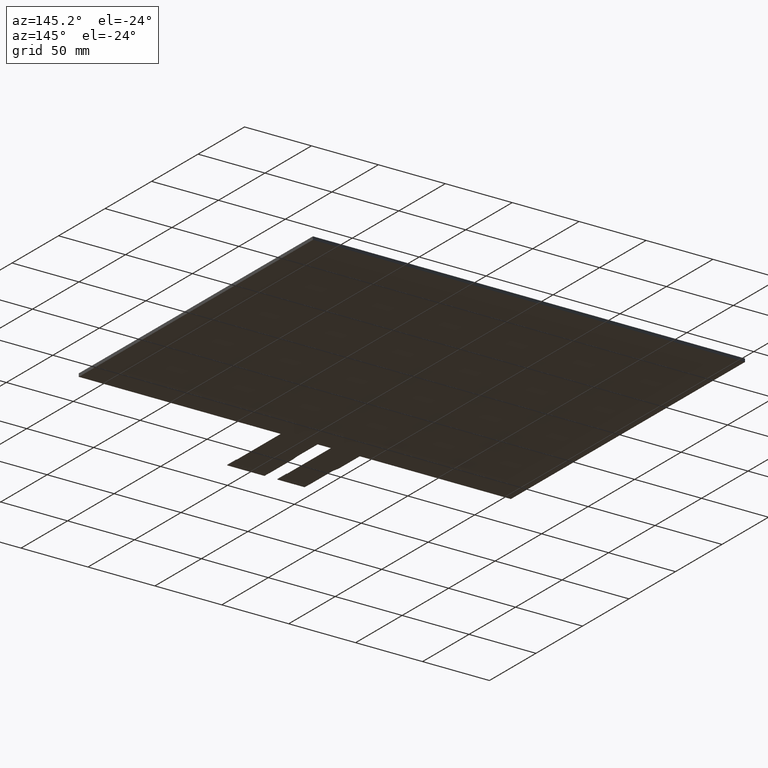
[diagram: clean part render]
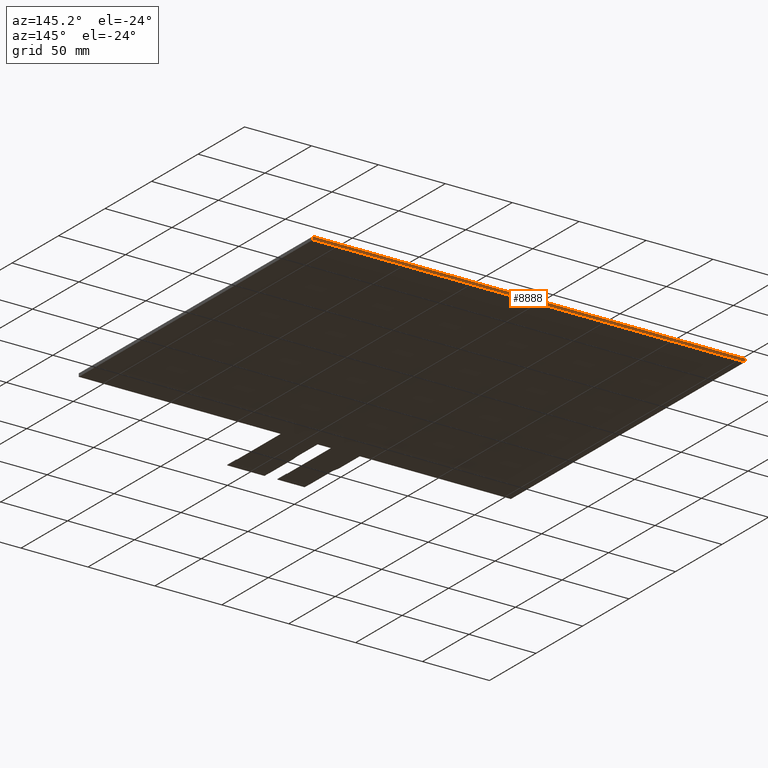
[diagram: same view with one face highlighted and labeled with its STEP entity id]
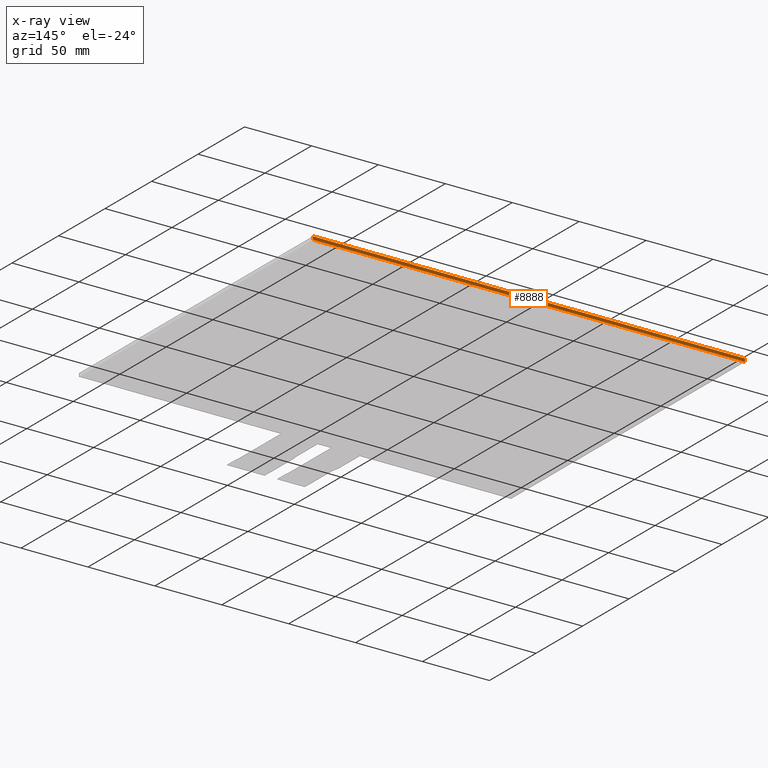
[diagram: x-ray of the same camera — body ghosted, the highlighted face saturated]
A machine part, auxiliary view. The second image highlights one B-rep face of the part: STEP entity #8888.
The next image is the same camera in x-ray: the body ghosted, the highlighted face saturated — about 0% of this face is hidden behind the body in this view.
In plain terms, the highlighted planar face has unit normal (0, 1, 0).
Its self-contained STEP definition (entity closure, byte-faithful):
#550=PLANE('',#9338);
#972=FACE_OUTER_BOUND('',#1398,.T.);
#1398=EDGE_LOOP('',(#8453,#8454,#8455,#8456));
#2629=LINE('',#13922,#3869);
#2633=LINE('',#13930,#3873);
#2639=LINE('',#13941,#3879);
#2640=LINE('',#13943,#3880);
#3869=VECTOR('',#11419,10.);
#3873=VECTOR('',#11425,10.);
#3879=VECTOR('',#11435,10.);
#3880=VECTOR('',#11438,10.);
#4713=VERTEX_POINT('',#13920);
#4714=VERTEX_POINT('',#13921);
#4717=VERTEX_POINT('',#13929);
#4720=VERTEX_POINT('',#13939);
#5957=EDGE_CURVE('',#4713,#4714,#2629,.T.);
#5961=EDGE_CURVE('',#4714,#4717,#2633,.T.);
#5967=EDGE_CURVE('',#4713,#4720,#2639,.T.);
#5968=EDGE_CURVE('',#4717,#4720,#2640,.T.);
#8453=ORIENTED_EDGE('',*,*,#5957,.F.);
#8454=ORIENTED_EDGE('',*,*,#5967,.T.);
#8455=ORIENTED_EDGE('',*,*,#5968,.F.);
#8456=ORIENTED_EDGE('',*,*,#5961,.F.);
#8888=ADVANCED_FACE('',(#972),#550,.T.);
#9338=AXIS2_PLACEMENT_3D('',#13942,#11436,#11437);
#11419=DIRECTION('',(-1.,0.,0.));
#11425=DIRECTION('',(0.,0.,-1.));
#11435=DIRECTION('',(0.,0.,-1.));
#11436=DIRECTION('center_axis',(0.,1.,0.));
#11437=DIRECTION('ref_axis',(1.,0.,0.));
#11438=DIRECTION('',(1.,0.,0.));
#13920=CARTESIAN_POINT('',(159.7,121.65,0.));
#13921=CARTESIAN_POINT('',(-163.2,121.65,0.));
#13922=CARTESIAN_POINT('',(159.7,121.65,0.));
#13929=CARTESIAN_POINT('',(-163.2,121.65,-2.35));
#13930=CARTESIAN_POINT('',(-163.2,121.65,0.));
#13939=CARTESIAN_POINT('',(159.7,121.65,-2.35));
#13941=CARTESIAN_POINT('',(159.7,121.65,0.));
#13942=CARTESIAN_POINT('Origin',(-163.2,121.65,0.));
#13943=CARTESIAN_POINT('',(159.7,121.65,-2.35));